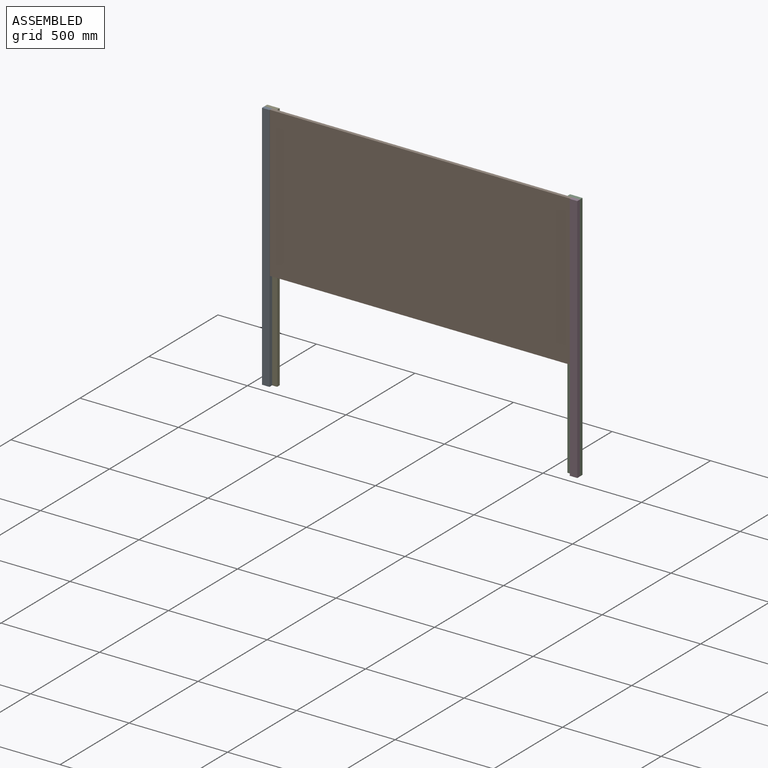
[diagram: assembled view]
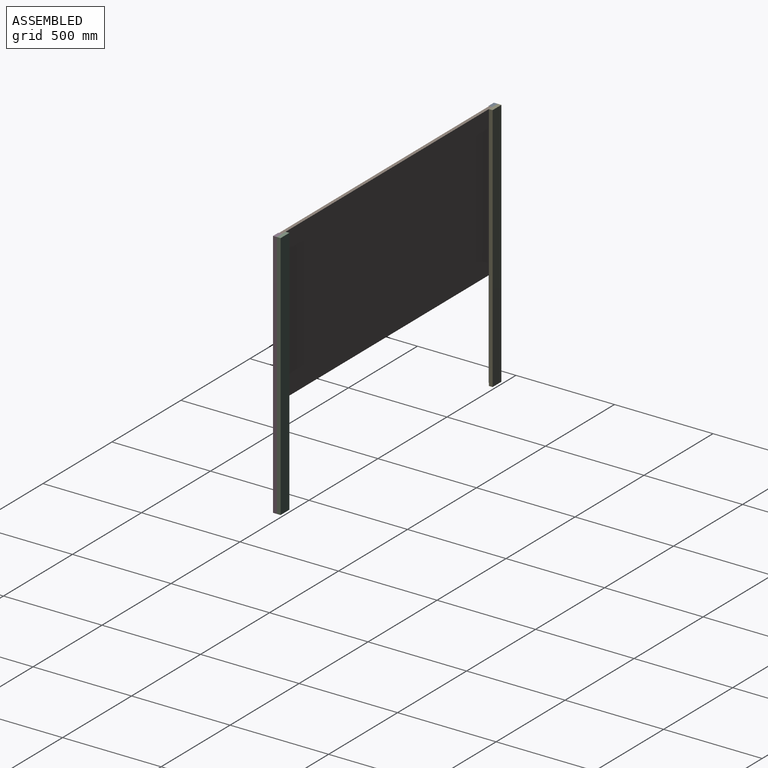
[diagram: assembled view, second angle]
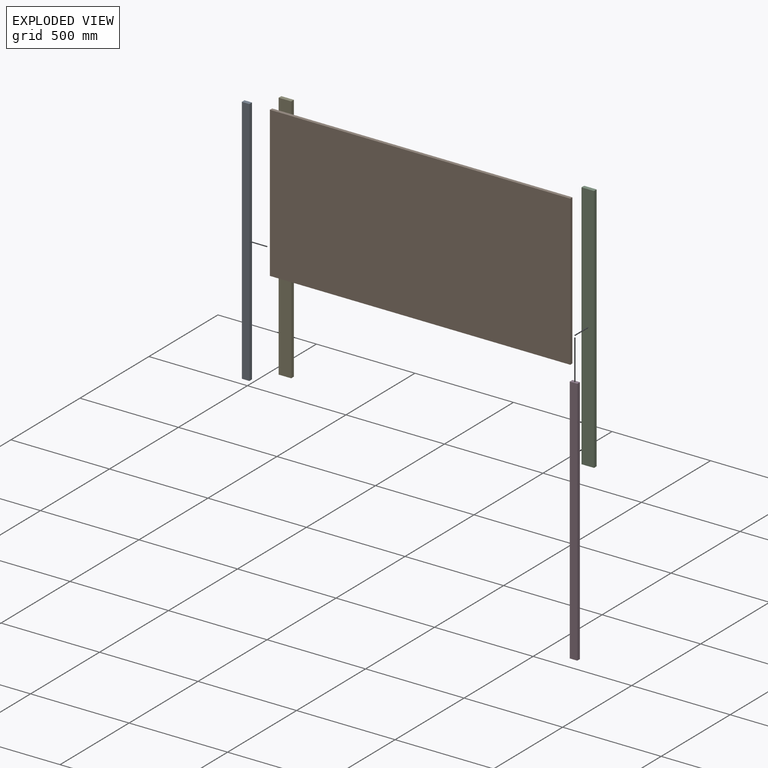
[diagram: exploded view]
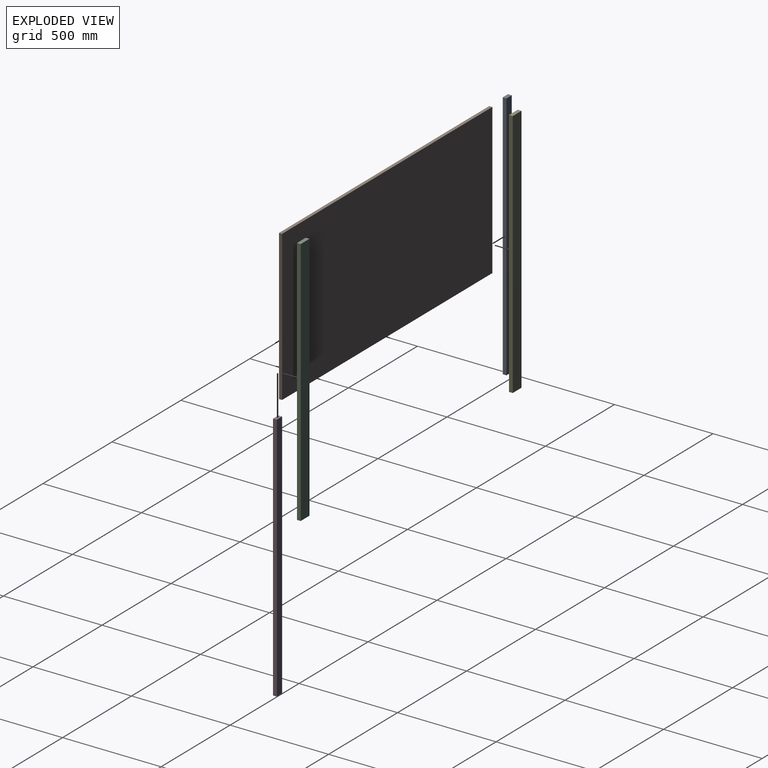
[diagram: exploded view, second angle]
ASSEMBLY  parts=5 mates=12
PART A: 6 faces, bbox 38.1x19.1x1270 mm
  f0: plane 38.1x19.05mm, normal (0,0,1), area 725.8mm2, adj f1,f3,f4,f5
  f1: plane 1270x19.05mm, normal (-1,0,0), area 24193.5mm2, adj f0,f2,f4,f5
  f2: plane 38.1x19.05mm, normal (0,0,-1), area 725.8mm2, adj f1,f3,f4,f5
  f3: plane 1270x19.05mm, normal (1,0,0), area 24193.5mm2, adj f0,f2,f4,f5
  f4: plane 1270x38.1mm, normal (0,-1,0), area 48387mm2, adj f0,f1,f2,f3
  f5: plane 1270x38.1mm, normal (0,1,0), area 48387mm2, adj f0,f1,f2,f3
PART B: 6 faces, bbox 1524x15.9x762 mm
  f0: plane 1524x15.88mm, normal (0,0,1), area 24193.5mm2, adj f1,f3,f4,f5
  f1: plane 762x15.88mm, normal (-1,0,0), area 12096.8mm2, adj f0,f2,f4,f5
  f2: plane 1524x15.88mm, normal (0,0,-1), area 24193.5mm2, adj f1,f3,f4,f5
  f3: plane 762x15.88mm, normal (1,0,0), area 12096.8mm2, adj f0,f2,f4,f5
  f4: plane 1524x762mm, normal (0,-1,0), area 1161288mm2, adj f0,f1,f2,f3
  f5: plane 1524x762mm, normal (0,1,0), area 1161288mm2, adj f0,f1,f2,f3
PART C: 6 faces, bbox 63.5x19.1x1270 mm
  f0: plane 63.5x19.05mm, normal (0,0,1), area 1209.7mm2, adj f1,f3,f4,f5
  f1: plane 1270x19.05mm, normal (-1,0,0), area 24193.5mm2, adj f0,f2,f4,f5
  f2: plane 63.5x19.05mm, normal (0,0,-1), area 1209.7mm2, adj f1,f3,f4,f5
  f3: plane 1270x19.05mm, normal (1,0,0), area 24193.5mm2, adj f0,f2,f4,f5
  f4: plane 1270x63.5mm, normal (0,-1,0), area 80645mm2, adj f0,f1,f2,f3
  f5: plane 1270x63.5mm, normal (0,1,0), area 80645mm2, adj f0,f1,f2,f3
PART D: same geometry as A
PART E: same geometry as C
PLACE A t=(119.83,36.1,-87.3)mm
PLACE B t=(905.28,36.1,343.65)mm
PLACE C t=(1681.93,55.15,-87.3)mm
PLACE D t=(1681.93,36.1,-87.3)mm
PLACE E t=(145.23,55.15,-87.3)mm
MATE planar A.f3 <-> B.f1  axis (1,0,0) through (150.38,26.57,-87.3)mm
MATE planar E.f4 <-> A.f5  axis (0,-1,0) through (144.03,36.1,-87.3)mm
MATE planar A.f0 <-> E.f0  axis (0,0,1) through (131.33,26.57,547.7)mm
MATE planar B.f0 <-> D.f0  axis (0,0,1) through (912.38,28.16,547.7)mm
MATE planar B.f5 <-> E.f4  axis (0,1,0) through (912.38,36.1,166.7)mm
MATE planar B.f3 <-> D.f1  axis (1,0,0) through (1674.38,28.16,166.7)mm
MATE planar B.f5 <-> C.f4  axis (0,1,0) through (912.38,36.1,166.7)mm
MATE planar E.f0 <-> B.f0  axis (0,0,1) through (144.03,55.15,547.7)mm
MATE planar D.f3 <-> C.f3  axis (1,0,0) through (1712.48,26.57,-87.3)mm
MATE planar D.f5 <-> C.f4  axis (0,1,0) through (1674.38,36.1,-87.3)mm
MATE planar A.f1 <-> E.f1  axis (-1,0,0) through (112.28,26.57,-87.3)mm
MATE planar B.f0 <-> C.f0  axis (0,0,1) through (912.38,28.16,547.7)mm
